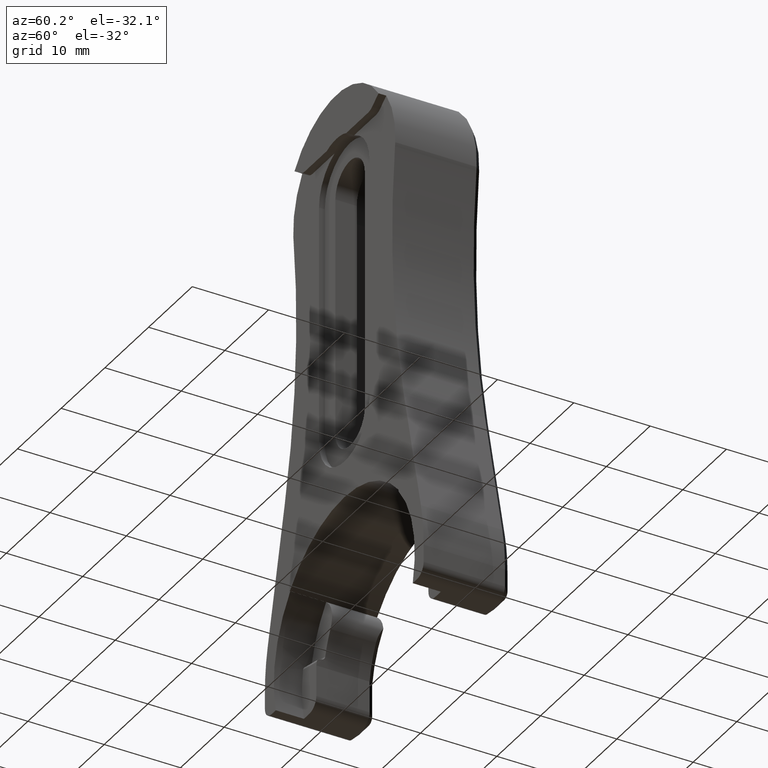
[diagram: clean part render]
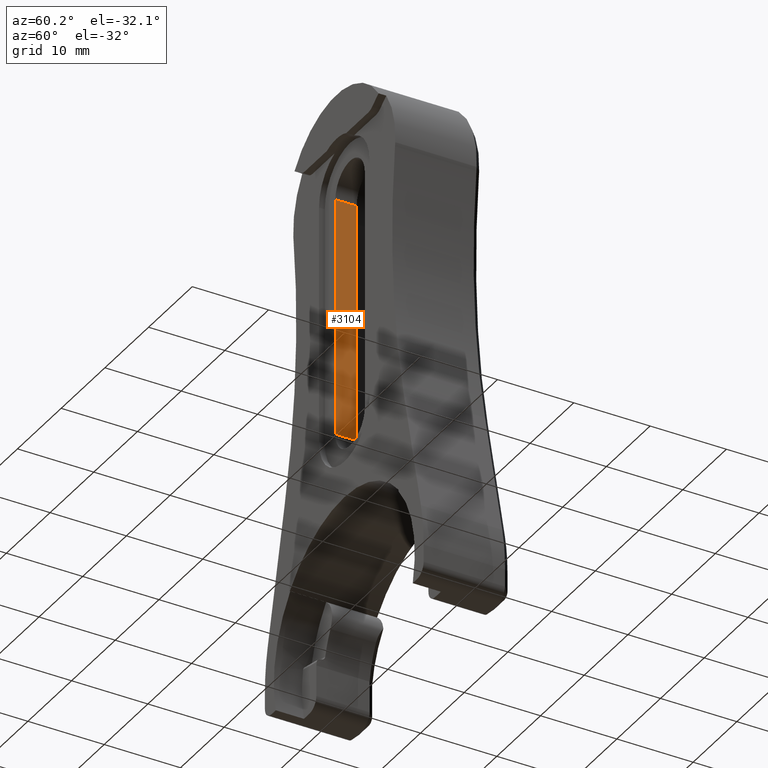
[diagram: same view with one face highlighted and labeled with its STEP entity id]
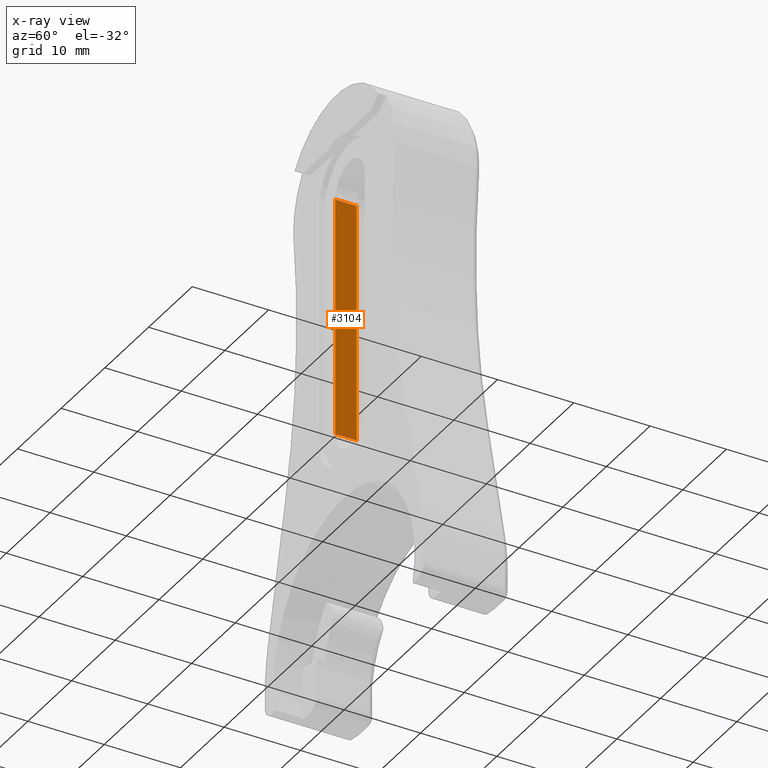
[diagram: x-ray of the same camera — body ghosted, the highlighted face saturated]
A machine part, auxiliary view. The second image highlights one B-rep face of the part: STEP entity #3104.
The next image is the same camera in x-ray: the body ghosted, the highlighted face saturated — about 0% of this face is hidden behind the body in this view.
In plain terms, the highlighted planar face has unit normal (1, 0, -0).
Its self-contained STEP definition (entity closure, byte-faithful):
#8 = CARTESIAN_POINT ( 'NONE',  ( -0.1324999999999998700, -0.08499999999999997800, 2.294999999999999500 ) ) ;
#57 = CARTESIAN_POINT ( 'NONE',  ( -0.1324999999999998700, 0.2249999999999999800, 2.294999999999999500 ) ) ;
#69 = LINE ( 'NONE', #2499, #2713 ) ;
#142 = ORIENTED_EDGE ( 'NONE', *, *, #760, .F. ) ;
#370 = ORIENTED_EDGE ( 'NONE', *, *, #662, .F. ) ;
#397 = DIRECTION ( 'NONE',  ( -0.0000000000000000000, -1.000000000000000000, -0.0000000000000000000 ) ) ;
#662 = EDGE_CURVE ( 'NONE', #3981, #2519, #1181, .T. ) ;
#751 = VECTOR ( 'NONE', #397, 39.37007874015748100 ) ;
#760 = EDGE_CURVE ( 'NONE', #3885, #3981, #2510, .T. ) ;
#778 = DIRECTION ( 'NONE',  ( 1.376939512935616900E-016, 0.0000000000000000000, 1.000000000000000000 ) ) ;
#1181 = LINE ( 'NONE', #2669, #1995 ) ;
#1279 = AXIS2_PLACEMENT_3D ( 'NONE', #1407, #3770, #1750 ) ;
#1407 = CARTESIAN_POINT ( 'NONE',  ( -0.1325000000000004200, 0.2249999999999999800, 1.055000000000000200 ) ) ;
#1499 = VECTOR ( 'NONE', #2264, 39.37007874015748100 ) ;
#1597 = CARTESIAN_POINT ( 'NONE',  ( -0.1325000000000004200, 0.2249999999999999800, 1.055000000000000200 ) ) ;
#1750 = DIRECTION ( 'NONE',  ( -1.376939512935616900E-016, 0.0000000000000000000, -1.000000000000000000 ) ) ;
#1810 = EDGE_CURVE ( 'NONE', #3135, #2519, #2483, .T. ) ;
#1995 = VECTOR ( 'NONE', #2361, 39.37007874015748100 ) ;
#2080 = PLANE ( 'NONE',  #1279 ) ;
#2158 = ORIENTED_EDGE ( 'NONE', *, *, #3238, .T. ) ;
#2264 = DIRECTION ( 'NONE',  ( -0.0000000000000000000, -1.000000000000000000, -0.0000000000000000000 ) ) ;
#2361 = DIRECTION ( 'NONE',  ( 1.376939512935616900E-016, 0.0000000000000000000, 1.000000000000000000 ) ) ;
#2391 = CARTESIAN_POINT ( 'NONE',  ( -0.1324999999999998700, -0.1950000000000000300, 2.294999999999999500 ) ) ;
#2393 = ORIENTED_EDGE ( 'NONE', *, *, #1810, .T. ) ;
#2483 = LINE ( 'NONE', #57, #751 ) ;
#2499 = CARTESIAN_POINT ( 'NONE',  ( -0.1325000000000004200, -0.08499999999999997800, 1.055000000000000200 ) ) ;
#2510 = LINE ( 'NONE', #1597, #1499 ) ;
#2519 = VERTEX_POINT ( 'NONE', #2391 ) ;
#2669 = CARTESIAN_POINT ( 'NONE',  ( -0.1325000000000004200, -0.1950000000000000300, 1.055000000000000200 ) ) ;
#2713 = VECTOR ( 'NONE', #778, 39.37007874015748100 ) ;
#3104 = ADVANCED_FACE ( 'NONE', ( #4074 ), #2080, .T. ) ;
#3123 = CARTESIAN_POINT ( 'NONE',  ( -0.1325000000000004200, -0.08499999999999997800, 1.055000000000000200 ) ) ;
#3135 = VERTEX_POINT ( 'NONE', #8 ) ;
#3238 = EDGE_CURVE ( 'NONE', #3885, #3135, #69, .T. ) ;
#3708 = EDGE_LOOP ( 'NONE', ( #370, #142, #2158, #2393 ) ) ;
#3770 = DIRECTION ( 'NONE',  ( 1.000000000000000000, 0.0000000000000000000, -1.376939512935616900E-016 ) ) ;
#3885 = VERTEX_POINT ( 'NONE', #3123 ) ;
#3981 = VERTEX_POINT ( 'NONE', #4152 ) ;
#4074 = FACE_OUTER_BOUND ( 'NONE', #3708, .T. ) ;
#4152 = CARTESIAN_POINT ( 'NONE',  ( -0.1325000000000004200, -0.1950000000000000300, 1.055000000000000200 ) ) ;